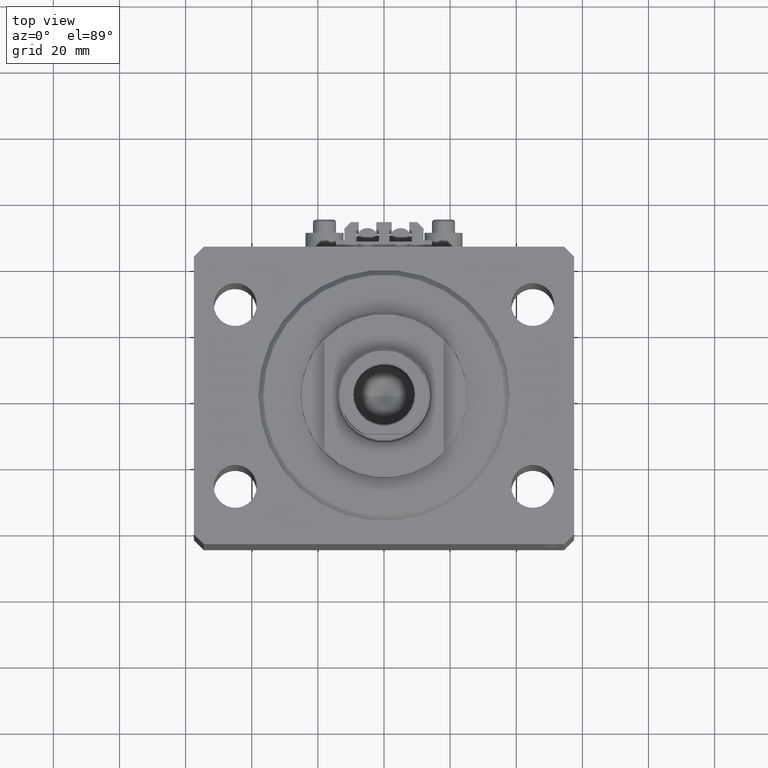
[diagram: clean part render]
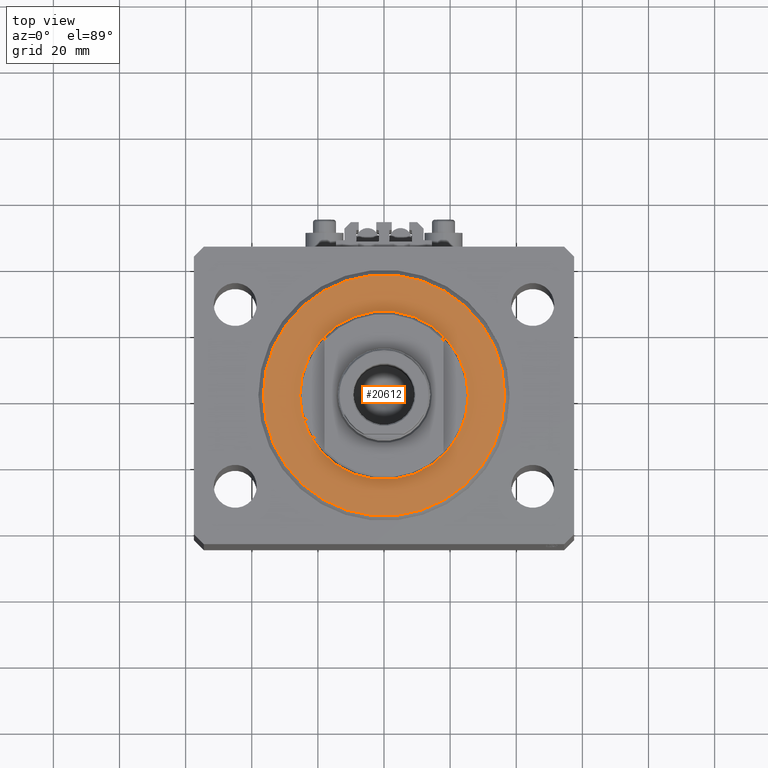
[diagram: same view with one face highlighted and labeled with its STEP entity id]
A machine part, top view. The second image highlights one B-rep face of the part: STEP entity #20612.
In plain terms, the highlighted planar face has unit normal (0, 0, -1).
Its self-contained STEP definition (entity closure, byte-faithful):
#1547 = FACE_BOUND ( 'NONE', #23360, .T. ) ;
#1803 = FACE_OUTER_BOUND ( 'NONE', #47369, .T. ) ;
#2055 = CARTESIAN_POINT ( 'NONE',  ( 0.000000000000000000, 0.000000000000000000, 0.000000000000000000 ) ) ;
#2800 = CARTESIAN_POINT ( 'NONE',  ( 0.000000000000000000, 0.000000000000000000, 0.000000000000000000 ) ) ;
#2927 = VERTEX_POINT ( 'NONE', #26331 ) ;
#4466 = CARTESIAN_POINT ( 'NONE',  ( 36.50000000000000000, 0.000000000000000000, 0.000000000000000000 ) ) ;
#5089 = EDGE_CURVE ( 'NONE', #18812, #44868, #10279, .T. ) ;
#6260 = ORIENTED_EDGE ( 'NONE', *, *, #35915, .T. ) ;
#7778 = DIRECTION ( 'NONE',  ( 1.000000000000000000, 0.000000000000000000, 0.000000000000000000 ) ) ;
#8649 = CARTESIAN_POINT ( 'NONE',  ( 0.000000000000000000, 0.000000000000000000, 0.000000000000000000 ) ) ;
#9096 = DIRECTION ( 'NONE',  ( 1.000000000000000000, 0.000000000000000000, 0.000000000000000000 ) ) ;
#10279 = CIRCLE ( 'NONE', #21942, 25.50000000000000355 ) ;
#12787 = DIRECTION ( 'NONE',  ( 1.000000000000000000, 0.000000000000000000, 0.000000000000000000 ) ) ;
#13004 = DIRECTION ( 'NONE',  ( 0.000000000000000000, 0.000000000000000000, 1.000000000000000000 ) ) ;
#13207 = CARTESIAN_POINT ( 'NONE',  ( 0.000000000000000000, 0.000000000000000000, 0.000000000000000000 ) ) ;
#13623 = CIRCLE ( 'NONE', #19828, 36.50000000000000000 ) ;
#15746 = AXIS2_PLACEMENT_3D ( 'NONE', #2800, #20575, #43932 ) ;
#16653 = PLANE ( 'NONE',  #23636 ) ;
#18812 = VERTEX_POINT ( 'NONE', #32400 ) ;
#19828 = AXIS2_PLACEMENT_3D ( 'NONE', #26280, #41124, #7778 ) ;
#20573 = DIRECTION ( 'NONE',  ( 0.000000000000000000, 0.000000000000000000, 1.000000000000000000 ) ) ;
#20575 = DIRECTION ( 'NONE',  ( 0.000000000000000000, 0.000000000000000000, 1.000000000000000000 ) ) ;
#20612 = ADVANCED_FACE ( 'NONE', ( #1547, #1803 ), #16653, .F. ) ;
#21032 = CIRCLE ( 'NONE', #38946, 36.50000000000000000 ) ;
#21942 = AXIS2_PLACEMENT_3D ( 'NONE', #8649, #20573, #12787 ) ;
#23360 = EDGE_LOOP ( 'NONE', ( #26208, #30556 ) ) ;
#23636 = AXIS2_PLACEMENT_3D ( 'NONE', #2055, #13004, #24198 ) ;
#24198 = DIRECTION ( 'NONE',  ( 1.000000000000000000, 0.000000000000000000, -0.000000000000000000 ) ) ;
#25912 = EDGE_CURVE ( 'NONE', #45870, #2927, #13623, .T. ) ;
#26208 = ORIENTED_EDGE ( 'NONE', *, *, #5089, .T. ) ;
#26280 = CARTESIAN_POINT ( 'NONE',  ( 0.000000000000000000, 0.000000000000000000, 0.000000000000000000 ) ) ;
#26331 = CARTESIAN_POINT ( 'NONE',  ( -36.50000000000000000, 4.561809326823889791E-15, 0.000000000000000000 ) ) ;
#28006 = CARTESIAN_POINT ( 'NONE',  ( -25.50000000000000355, 3.122849337825751011E-15, 2.168404344971008868E-16 ) ) ;
#30556 = ORIENTED_EDGE ( 'NONE', *, *, #45662, .T. ) ;
#32400 = CARTESIAN_POINT ( 'NONE',  ( 25.50000000000000355, 0.000000000000000000, 2.168404344971008868E-16 ) ) ;
#35915 = EDGE_CURVE ( 'NONE', #2927, #45870, #21032, .T. ) ;
#36763 = CIRCLE ( 'NONE', #15746, 25.50000000000000355 ) ;
#38946 = AXIS2_PLACEMENT_3D ( 'NONE', #13207, #46570, #9096 ) ;
#41124 = DIRECTION ( 'NONE',  ( -0.000000000000000000, -0.000000000000000000, -1.000000000000000000 ) ) ;
#43932 = DIRECTION ( 'NONE',  ( 1.000000000000000000, 0.000000000000000000, 0.000000000000000000 ) ) ;
#44868 = VERTEX_POINT ( 'NONE', #28006 ) ;
#45021 = ORIENTED_EDGE ( 'NONE', *, *, #25912, .T. ) ;
#45662 = EDGE_CURVE ( 'NONE', #44868, #18812, #36763, .T. ) ;
#45870 = VERTEX_POINT ( 'NONE', #4466 ) ;
#46570 = DIRECTION ( 'NONE',  ( -0.000000000000000000, -0.000000000000000000, -1.000000000000000000 ) ) ;
#47369 = EDGE_LOOP ( 'NONE', ( #45021, #6260 ) ) ;